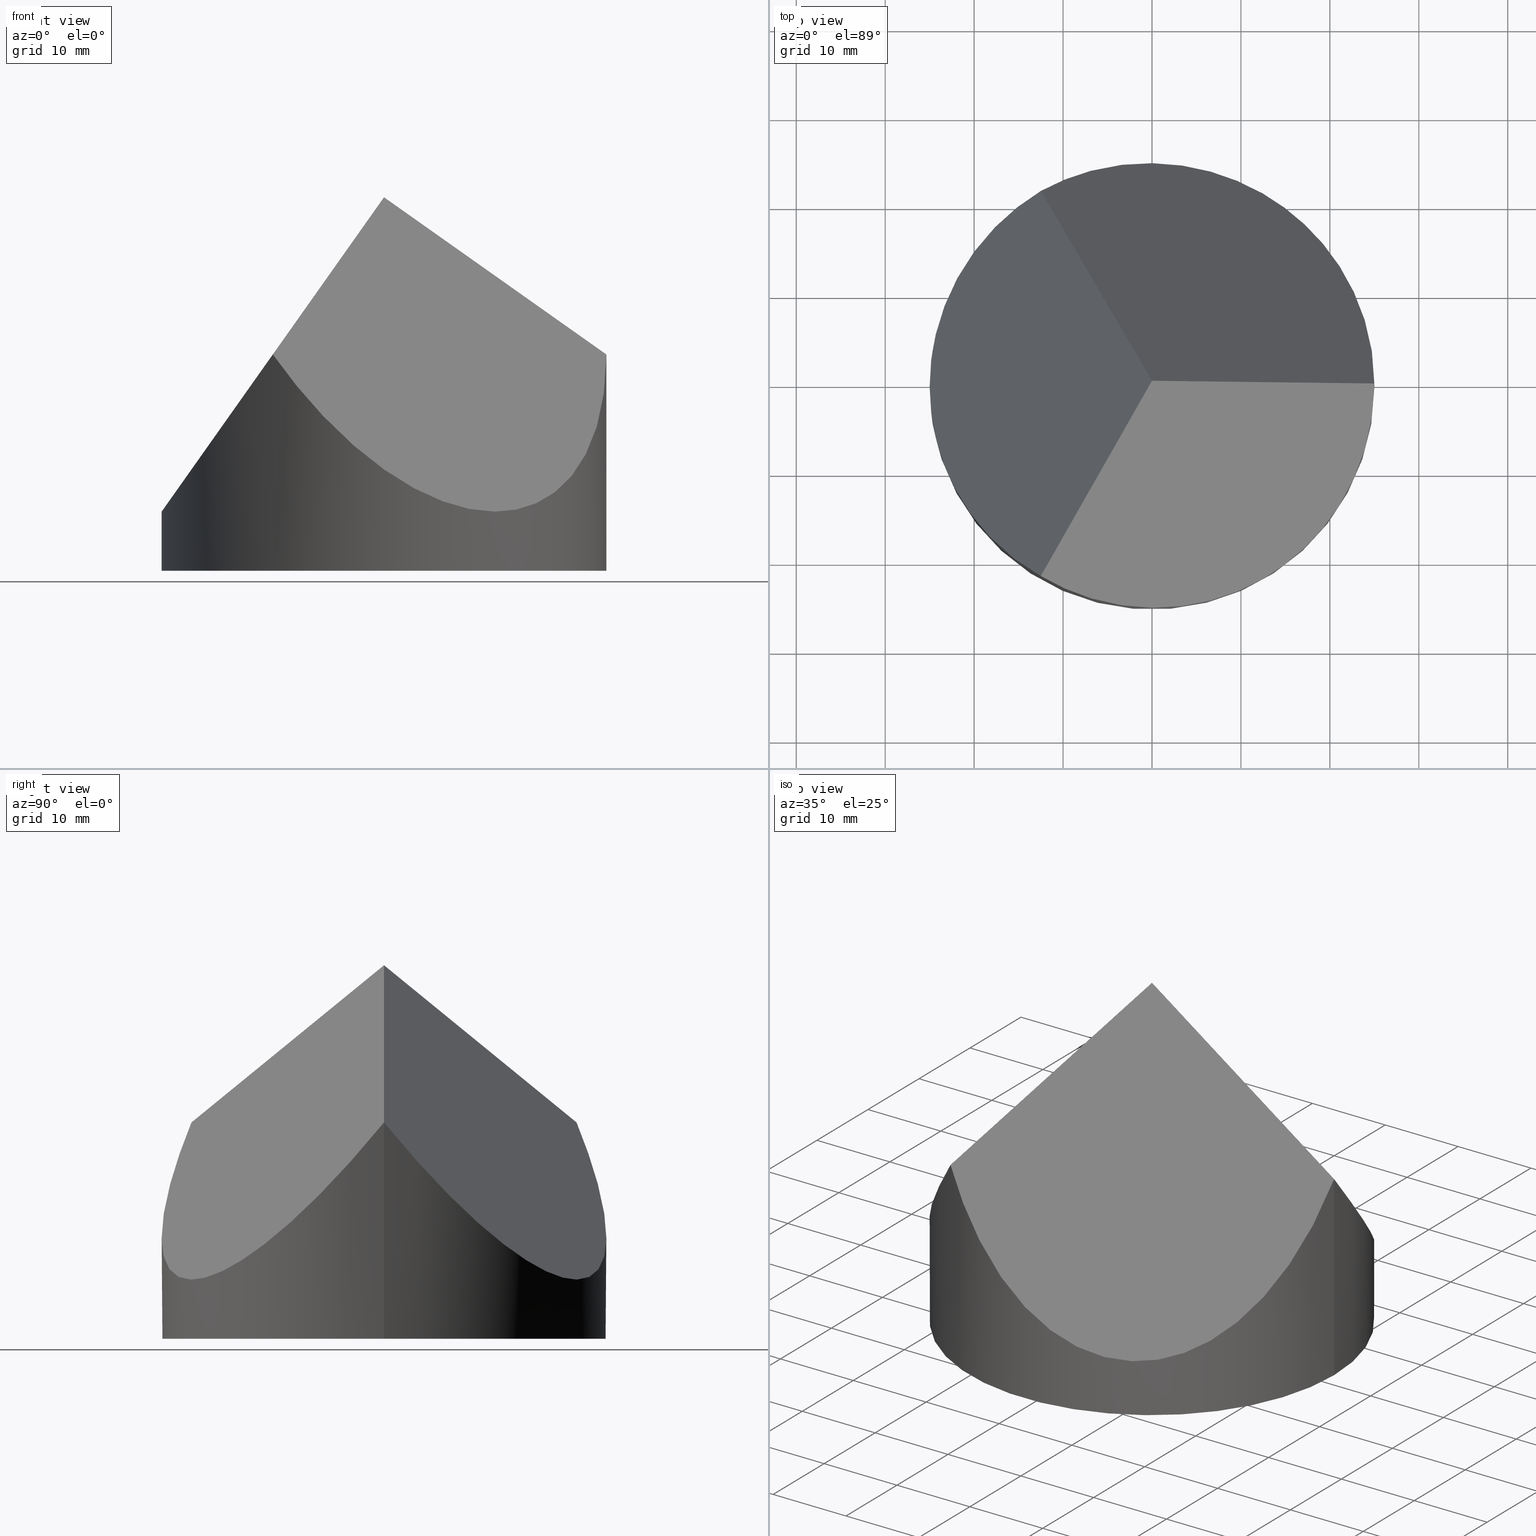
[diagram: canonical four-view strip — front | top / right | iso, engineering-drawing reading convention]
A machine part, canonical four-view strip (front | top / right | iso — engineering-drawing reading convention). The complete STEP part file that produces these views, byte-faithful:
ISO-10303-21;
HEADER;
FILE_DESCRIPTION (( 'STEP AP203' ),
    '1' );
FILE_NAME ('371506.STEP',
    '2019-07-25T01:43:18',
    ( '' ),
    ( '' ),
    'SwSTEP 2.0',
    'SolidWorks 2016',
    '' );
FILE_SCHEMA (( 'CONFIG_CONTROL_DESIGN' ));
ENDSEC;

DATA;
#1 = APPLICATION_CONTEXT ( 'configuration controlled 3d designs of mechanical parts and assemblies' ) ;
#2 = SECURITY_CLASSIFICATION_LEVEL ( 'unclassified' ) ;
#3 = PERSON_AND_ORGANIZATION_ROLE ( 'classification_officer' ) ;
#4 = CC_DESIGN_DATE_AND_TIME_ASSIGNMENT ( #160, #292, ( #72 ) ) ;
#5 = LOCAL_TIME ( 9, 43, 18.00000000000000000, #299 ) ;
#6 = CALENDAR_DATE ( 2019, 25, 7 ) ;
#7 = CC_DESIGN_PERSON_AND_ORGANIZATION_ASSIGNMENT ( #230, #73, ( #14 ) ) ;
#8 = VECTOR ( 'NONE', #190, 1000.000000000000100 ) ;
#9 = EDGE_LOOP ( 'NONE', ( #78, #199, #255 ) ) ;
#10 = CC_DESIGN_DATE_AND_TIME_ASSIGNMENT ( #46, #204, ( #307 ) ) ;
#11 = DATE_AND_TIME ( #60, #264 ) ;
#12 = ORIENTED_EDGE ( 'NONE', *, *, #229, .T. ) ;
#13 = DIRECTION ( 'NONE',  ( -1.000000000000000000, 0.0000000000000000000, 0.0000000000000000000 ) ) ;
#14 = PRODUCT_DEFINITION_FORMATION_WITH_SPECIFIED_SOURCE ( '�κ�', '', #286, .NOT_KNOWN. ) ;
#15 = EDGE_CURVE ( 'NONE', #221, #181, #31, .T. ) ;
#16 = PRODUCT_DEFINITION_SHAPE ( 'NONE', 'NONE',  #72 ) ;
#17 = CARTESIAN_POINT ( 'NONE',  ( -12.50000000000003000, -21.65063509461096900, 24.32600190598651200 ) ) ;
#18 = EDGE_CURVE ( 'NONE', #221, #30, #122, .T. ) ;
#19 = PERSON_AND_ORGANIZATION ( #62, #205 ) ;
#20 = DIRECTION ( 'NONE',  ( 0.0000000000000000000, -0.6325343505460011600, 0.7745323075116675700 ) ) ;
#21 = EDGE_LOOP ( 'NONE', ( #107, #40 ) ) ;
#22 = CARTESIAN_POINT ( 'NONE',  ( 0.0000000000000000000, 0.0000000000000000000, 0.0000000000000000000 ) ) ;
#23 = CC_DESIGN_PERSON_AND_ORGANIZATION_ASSIGNMENT ( #118, #3, ( #211 ) ) ;
#24 = DIRECTION ( 'NONE',  ( 0.0000000000000000000, 0.0000000000000000000, 1.000000000000000000 ) ) ;
#25 = APPROVAL_STATUS ( 'not_yet_approved' ) ;
#26 = APPROVAL_STATUS ( 'not_yet_approved' ) ;
#27 = APPROVAL ( #94, 'δָ��' ) ;
#28 = CIRCLE ( 'NONE', #187, 25.00000000000000000 ) ;
#29 = APPROVAL_ROLE ( '' ) ;
#30 = VERTEX_POINT ( 'NONE', #17 ) ;
#31 = LINE ( 'NONE', #183, #81 ) ;
#32 = AXIS2_PLACEMENT_3D ( 'NONE', #268, #240, #13 ) ;
#33 = LOCAL_TIME ( 9, 43, 18.00000000000000000, #134 ) ;
#34 = PRODUCT_RELATED_PRODUCT_CATEGORY ( 'detail', '', ( #286 ) ) ;
#35 = LOCAL_TIME ( 9, 43, 18.00000000000000000, #59 ) ;
#36 = FACE_OUTER_BOUND ( 'NONE', #162, .T. ) ;
#37 = DIRECTION ( 'NONE',  ( 1.000000000000000000, 0.0000000000000000000, -0.0000000000000000000 ) ) ;
#38 = CARTESIAN_POINT ( 'NONE',  ( -25.00000000000000700, -9.150635094610953100, 6.652003811973096400 ) ) ;
#39 = COORDINATED_UNIVERSAL_TIME_OFFSET ( 8, 0, .AHEAD. ) ;
#40 = ORIENTED_EDGE ( 'NONE', *, *, #79, .F. ) ;
#41 = DIRECTION ( 'NONE',  ( 0.0000000000000000000, 0.6325343505460014900, 0.7745323075116673500 ) ) ;
#42 = CC_DESIGN_APPROVAL ( #27, ( #211 ) ) ;
#43 = DIRECTION ( 'NONE',  ( 1.000000000000000000, 0.0000000000000000000, 0.0000000000000000000 ) ) ;
#44 = APPROVAL_PERSON_ORGANIZATION ( #109, #175, #275 ) ;
#45 = APPLICATION_PROTOCOL_DEFINITION ( 'international standard', 'config_control_design', 1994, #137 ) ;
#46 = DATE_AND_TIME ( #124, #5 ) ;
#47 = CARTESIAN_POINT ( 'NONE',  ( 0.0000000000000000000, -5.798745577028398700E-015, 42.00000000000000700 ) ) ;
#48 = PERSON_AND_ORGANIZATION_ROLE ( 'classification_officer' ) ;
#49 = APPLICATION_PROTOCOL_DEFINITION ( 'international standard', 'config_control_design', 1994, #138 ) ;
#50 = APPROVAL_ROLE ( '' ) ;
#51 = VECTOR ( 'NONE', #184, 1000.000000000000200 ) ;
#52 = ORIENTED_EDGE ( 'NONE', *, *, #173, .F. ) ;
#53 = CC_DESIGN_APPROVAL ( #175, ( #307 ) ) ;
#54 = DATE_AND_TIME ( #6, #237 ) ;
#55 = ADVANCED_FACE ( 'NONE', ( #149 ), #225, .T. ) ;
#56 =( GEOMETRIC_REPRESENTATION_CONTEXT ( 3 ) GLOBAL_UNCERTAINTY_ASSIGNED_CONTEXT ( ( #165 ) ) GLOBAL_UNIT_ASSIGNED_CONTEXT ( ( #244, #224, #90 ) ) REPRESENTATION_CONTEXT ( 'NONE', 'WORKASPACE' ) );
#57 = APPROVAL ( #25, 'δָ��' ) ;
#58 = VERTEX_POINT ( 'NONE', #132 ) ;
#59 = COORDINATED_UNIVERSAL_TIME_OFFSET ( 8, 0, .AHEAD. ) ;
#60 = CALENDAR_DATE ( 2019, 25, 7 ) ;
#61 = CARTESIAN_POINT ( 'NONE',  ( 0.0000000000000000000, 0.0000000000000000000, 0.0000000000000000000 ) ) ;
#62 = PERSON ( 'δָ��', 'δָ��', 'δָ��', ('δָ��'), ('δָ��'), ('δָ��') ) ;
#63 = AXIS2_PLACEMENT_3D ( 'NONE', #308, #136, #272 ) ;
#64 = CARTESIAN_POINT ( 'NONE',  ( -12.50000000000003000, 21.65063509461094800, 24.32600190598650900 ) ) ;
#65 = CARTESIAN_POINT ( 'NONE',  ( -25.00000000000000000, 0.0000000000000000000, 42.00000000000000000 ) ) ;
#66 = LOCAL_TIME ( 9, 43, 18.00000000000000000, #126 ) ;
#67 = PERSON_AND_ORGANIZATION ( #62, #205 ) ;
#68 = CC_DESIGN_PERSON_AND_ORGANIZATION_ASSIGNMENT ( #177, #48, ( #231 ) ) ;
#69 = CARTESIAN_POINT ( 'NONE',  ( -20.42468245269453300, 17.07531754730545600, 13.12113610081974900 ) ) ;
#70 = DATE_TIME_ROLE ( 'classification_date' ) ;
#71 = APPROVAL_ROLE ( '' ) ;
#72 = PRODUCT_DEFINITION ( 'δ֪', '', #14, #153 ) ;
#73 = PERSON_AND_ORGANIZATION_ROLE ( 'creator' ) ;
#74 = APPROVAL ( #298, 'δָ��' ) ;
#75 = CALENDAR_DATE ( 2019, 25, 7 ) ;
#76 = PERSON_AND_ORGANIZATION ( #62, #205 ) ;
#77 = DATE_AND_TIME ( #128, #207 ) ;
#78 = ORIENTED_EDGE ( 'NONE', *, *, #105, .T. ) ;
#79 = EDGE_CURVE ( 'NONE', #181, #115, #282, .T. ) ;
#80 = CC_DESIGN_DATE_AND_TIME_ASSIGNMENT ( #54, #253, ( #211 ) ) ;
#81 = VECTOR ( 'NONE', #161, 1000.000000000000000 ) ;
#82 = ORIENTED_EDGE ( 'NONE', *, *, #152, .F. ) ;
#83 = CARTESIAN_POINT ( 'NONE',  ( -12.50000000000003000, -21.65063509461096900, 24.32600190598651200 ) ) ;
#84 = CC_DESIGN_APPROVAL ( #95, ( #72 ) ) ;
#85 = DIRECTION ( 'NONE',  ( -0.5774302165486712200, 0.0000000000000000000, -0.8164400437365591000 ) ) ;
#86 = CARTESIAN_POINT ( 'NONE',  ( 6.249999999999992000, -32.47595264191646400, -2.184995235033657700 ) ) ;
#87 = FACE_OUTER_BOUND ( 'NONE', #9, .T. ) ;
#88 = ORIENTED_EDGE ( 'NONE', *, *, #152, .T. ) ;
#89 = CC_DESIGN_PERSON_AND_ORGANIZATION_ASSIGNMENT ( #76, #201, ( #133 ) ) ;
#90 =( NAMED_UNIT ( * ) SI_UNIT ( $, .STERADIAN. ) SOLID_ANGLE_UNIT ( ) );
#91 = PERSON_AND_ORGANIZATION_ROLE ( 'design_owner' ) ;
#92 = DIRECTION ( 'NONE',  ( 0.0000000000000000000, 0.0000000000000000000, 1.000000000000000000 ) ) ;
#93 = APPROVAL_STATUS ( 'not_yet_approved' ) ;
#94 = APPROVAL_STATUS ( 'not_yet_approved' ) ;
#95 = APPROVAL ( #26, 'δָ��' ) ;
#96 = APPROVAL_STATUS ( 'not_yet_approved' ) ;
#97 = ADVANCED_FACE ( 'NONE', ( #167 ), #156, .F. ) ;
#98 = ORIENTED_EDGE ( 'NONE', *, *, #229, .F. ) ;
#99 = DESIGN_CONTEXT ( 'detailed design', #171, 'design' ) ;
#100 = EDGE_CURVE ( 'NONE', #221, #247, #232, .T. ) ;
#101 = CC_DESIGN_DATE_AND_TIME_ASSIGNMENT ( #168, #70, ( #231 ) ) ;
#102 = COORDINATED_UNIVERSAL_TIME_OFFSET ( 8, 0, .AHEAD. ) ;
#103 = LINE ( 'NONE', #65, #157 ) ;
#104 = AXIS2_PLACEMENT_3D ( 'NONE', #61, #111, #236 ) ;
#105 = EDGE_CURVE ( 'NONE', #221, #278, #186, .T. ) ;
#106 = DATE_AND_TIME ( #114, #179 ) ;
#107 = ORIENTED_EDGE ( 'NONE', *, *, #209, .F. ) ;
#108 = CC_DESIGN_APPROVAL ( #74, ( #133 ) ) ;
#109 = PERSON_AND_ORGANIZATION ( #62, #205 ) ;
#110 = CARTESIAN_POINT ( 'NONE',  ( 35.80067308283097600, -3.469446951953614200E-015, 16.69035888678597600 ) ) ;
#111 = DIRECTION ( 'NONE',  ( 0.0000000000000000000, 0.0000000000000000000, 1.000000000000000000 ) ) ;
#112 = CARTESIAN_POINT ( 'NONE',  ( -25.00000000000000400, 9.150635094610953100, 6.652003811973095500 ) ) ;
#113 = PLANE ( 'NONE',  #121 ) ;
#114 = CALENDAR_DATE ( 2019, 25, 7 ) ;
#115 = VERTEX_POINT ( 'NONE', #158 ) ;
#116 = AXIS2_PLACEMENT_3D ( 'NONE', #22, #24, #117 ) ;
#117 = DIRECTION ( 'NONE',  ( 1.000000000000000000, 0.0000000000000000000, 0.0000000000000000000 ) ) ;
#118 = PERSON_AND_ORGANIZATION ( #62, #205 ) ;
#119 = CARTESIAN_POINT ( 'NONE',  ( 25.00000000000001400, -4.874894994984150700E-015, 24.32600190598661900 ) ) ;
#120 = MECHANICAL_CONTEXT ( 'NONE', #138, 'mechanical' ) ;
#121 = AXIS2_PLACEMENT_3D ( 'NONE', #159, #212, #37 ) ;
#122 =( BOUNDED_CURVE ( )  B_SPLINE_CURVE ( 3, ( #130, #241, #86, #213 ),
 .UNSPECIFIED., .F., .T. ) 
 B_SPLINE_CURVE_WITH_KNOTS ( ( 4, 4 ),
 ( 5.235987755982986200, 7.330382858376182800 ),
 .UNSPECIFIED. ) 
 CURVE ( )  GEOMETRIC_REPRESENTATION_ITEM ( )  RATIONAL_B_SPLINE_CURVE ( ( 1.000000000000000000, 0.6666666666666663000, 0.6666666666666663000, 1.000000000000000000 ) ) 
 REPRESENTATION_ITEM ( '' )  );
#123 = APPROVAL ( #96, 'δָ��' ) ;
#124 = CALENDAR_DATE ( 2019, 25, 7 ) ;
#125 = ORIENTED_EDGE ( 'NONE', *, *, #261, .T. ) ;
#126 = COORDINATED_UNIVERSAL_TIME_OFFSET ( 8, 0, .AHEAD. ) ;
#127 = MANIFOLD_SOLID_BREP ( '�г�-����3', #271 ) ;
#128 = CALENDAR_DATE ( 2019, 25, 7 ) ;
#129 = CC_DESIGN_PERSON_AND_ORGANIZATION_ASSIGNMENT ( #311, #228, ( #133 ) ) ;
#130 = CARTESIAN_POINT ( 'NONE',  ( 25.00000000000001400, -4.874894994984150700E-015, 24.32600190598661900 ) ) ;
#131 = FACE_OUTER_BOUND ( 'NONE', #21, .T. ) ;
#132 = CARTESIAN_POINT ( 'NONE',  ( -25.00000000000000000, 0.0000000000000000000, 6.652003811973103500 ) ) ;
#133 = PRODUCT_DEFINITION_FORMATION_WITH_SPECIFIED_SOURCE ( '�κ�', '', #216, .NOT_KNOWN. ) ;
#134 = COORDINATED_UNIVERSAL_TIME_OFFSET ( 8, 0, .AHEAD. ) ;
#135 = EDGE_LOOP ( 'NONE', ( #176, #283, #206, #155, #144 ) ) ;
#136 = DIRECTION ( 'NONE',  ( -0.0000000000000000000, -0.0000000000000000000, -1.000000000000000000 ) ) ;
#137 = APPLICATION_CONTEXT ( 'configuration controlled 3d designs of mechanical parts and assemblies' ) ;
#138 = APPLICATION_CONTEXT ( 'configuration controlled 3d designs of mechanical parts and assemblies' ) ;
#139 = APPROVAL_DATE_TIME ( #281, #27 ) ;
#140 = DIRECTION ( 'NONE',  ( 0.0000000000000000000, 0.0000000000000000000, 1.000000000000000000 ) ) ;
#141 = LINE ( 'NONE', #223, #219 ) ;
#142 = PERSON_AND_ORGANIZATION_ROLE ( 'design_supplier' ) ;
#143 = PERSON_AND_ORGANIZATION ( #62, #205 ) ;
#144 = ORIENTED_EDGE ( 'NONE', *, *, #173, .T. ) ;
#145 = ORIENTED_EDGE ( 'NONE', *, *, #18, .T. ) ;
#146 = CC_DESIGN_PERSON_AND_ORGANIZATION_ASSIGNMENT ( #154, #142, ( #14 ) ) ;
#147 = ADVANCED_FACE ( 'NONE', ( #131 ), #113, .F. ) ;
#148 = COORDINATED_UNIVERSAL_TIME_OFFSET ( 8, 0, .AHEAD. ) ;
#149 = FACE_OUTER_BOUND ( 'NONE', #135, .T. ) ;
#150 = ORIENTED_EDGE ( 'NONE', *, *, #209, .T. ) ;
#151 = CC_DESIGN_PERSON_AND_ORGANIZATION_ASSIGNMENT ( #143, #227, ( #72 ) ) ;
#152 = EDGE_CURVE ( 'NONE', #30, #58, #294, .T. ) ;
#153 = DESIGN_CONTEXT ( 'detailed design', #1, 'design' ) ;
#154 = PERSON_AND_ORGANIZATION ( #62, #205 ) ;
#155 = ORIENTED_EDGE ( 'NONE', *, *, #261, .F. ) ;
#156 = PLANE ( 'NONE',  #172 ) ;
#157 = VECTOR ( 'NONE', #164, 1000.000000000000000 ) ;
#158 = CARTESIAN_POINT ( 'NONE',  ( -25.00000000000000000, 0.0000000000000000000, 0.0000000000000000000 ) ) ;
#159 = CARTESIAN_POINT ( 'NONE',  ( 0.0000000000000000000, 0.0000000000000000000, 0.0000000000000000000 ) ) ;
#160 = DATE_AND_TIME ( #210, #293 ) ;
#161 = DIRECTION ( 'NONE',  ( -0.0000000000000000000, -0.0000000000000000000, -1.000000000000000000 ) ) ;
#162 = EDGE_LOOP ( 'NONE', ( #257, #235, #12 ) ) ;
#163 = CARTESIAN_POINT ( 'NONE',  ( -11.40424666751465600, -19.75273465018339500, 25.87530929077494000 ) ) ;
#164 = DIRECTION ( 'NONE',  ( -0.0000000000000000000, -0.0000000000000000000, -1.000000000000000000 ) ) ;
#165 = UNCERTAINTY_MEASURE_WITH_UNIT (LENGTH_MEASURE( 1.000000000000000100E-005 ), #244, 'distance_accuracy_value', 'NONE');
#166 = APPROVAL_DATE_TIME ( #77, #175 ) ;
#167 = FACE_OUTER_BOUND ( 'NONE', #297, .T. ) ;
#168 = DATE_AND_TIME ( #238, #248 ) ;
#169 = APPLICATION_PROTOCOL_DEFINITION ( 'international standard', 'config_control_design', 1994, #1 ) ;
#170 = CARTESIAN_POINT ( 'NONE',  ( 0.0000000000000000000, 0.0000000000000000000, 0.0000000000000000000 ) ) ;
#171 = APPLICATION_CONTEXT ( 'configuration controlled 3d designs of mechanical parts and assemblies' ) ;
#172 = AXIS2_PLACEMENT_3D ( 'NONE', #215, #217, #85 ) ;
#173 = EDGE_CURVE ( 'NONE', #58, #247, #192, .T. ) ;
#174 = APPROVAL_DATE_TIME ( #106, #95 ) ;
#175 = APPROVAL ( #93, 'δָ��' ) ;
#176 = ORIENTED_EDGE ( 'NONE', *, *, #100, .F. ) ;
#177 = PERSON_AND_ORGANIZATION ( #62, #205 ) ;
#178 = ADVANCED_FACE ( 'NONE', ( #198 ), #284, .T. ) ;
#179 = LOCAL_TIME ( 9, 43, 18.00000000000000000, #254 ) ;
#180 = APPROVAL_PERSON_ORGANIZATION ( #258, #27, #50 ) ;
#181 = VERTEX_POINT ( 'NONE', #312 ) ;
#182 = COORDINATED_UNIVERSAL_TIME_OFFSET ( 8, 0, .AHEAD. ) ;
#183 = CARTESIAN_POINT ( 'NONE',  ( 25.00000000000000000, 3.061616997868382300E-015, 42.00000000000000000 ) ) ;
#184 = DIRECTION ( 'NONE',  ( -0.8165531063768112200, -1.062547636232122500E-016, 0.5772703218305786900 ) ) ;
#185 = CARTESIAN_POINT ( 'NONE',  ( -20.42468245269452600, -17.07531754730547000, 13.12113610081976100 ) ) ;
#186 = LINE ( 'NONE', #110, #51 ) ;
#187 = AXIS2_PLACEMENT_3D ( 'NONE', #194, #92, #43 ) ;
#188 = CARTESIAN_POINT ( 'NONE',  ( -25.00000000000000000, 0.0000000000000000000, 6.652003811973103500 ) ) ;
#189 = CC_DESIGN_APPROVAL ( #57, ( #14 ) ) ;
#190 = DIRECTION ( 'NONE',  ( 0.4082765531884056700, 0.7071557336614137100, 0.5772703218305809100 ) ) ;
#191 = CC_DESIGN_APPROVAL ( #123, ( #231 ) ) ;
#192 =( BOUNDED_CURVE ( )  B_SPLINE_CURVE ( 3, ( #239, #112, #69, #64 ),
 .UNSPECIFIED., .F., .T. ) 
 B_SPLINE_CURVE_WITH_KNOTS ( ( 4, 4 ),
 ( 0.0000000000000000000, 1.047197551196596300 ),
 .UNSPECIFIED. ) 
 CURVE ( )  GEOMETRIC_REPRESENTATION_ITEM ( )  RATIONAL_B_SPLINE_CURVE ( ( 1.000000000000000000, 0.9106836025229593200, 0.9106836025229593200, 1.000000000000000000 ) ) 
 REPRESENTATION_ITEM ( '' )  );
#193 = APPROVAL_DATE_TIME ( #233, #123 ) ;
#194 = CARTESIAN_POINT ( 'NONE',  ( 0.0000000000000000000, 0.0000000000000000000, 0.0000000000000000000 ) ) ;
#195 = APPROVAL_PERSON_ORGANIZATION ( #265, #74, #29 ) ;
#196 = PLANE ( 'NONE',  #220 ) ;
#197 = APPROVAL_ROLE ( '' ) ;
#198 = FACE_OUTER_BOUND ( 'NONE', #295, .T. ) ;
#199 = ORIENTED_EDGE ( 'NONE', *, *, #301, .F. ) ;
#200 = APPLICATION_PROTOCOL_DEFINITION ( 'international standard', 'config_control_design', 1994, #171 ) ;
#201 = PERSON_AND_ORGANIZATION_ROLE ( 'creator' ) ;
#202 = PERSON_AND_ORGANIZATION_ROLE ( 'creator' ) ;
#203 = ADVANCED_FACE ( 'NONE', ( #87 ), #309, .F. ) ;
#204 = DATE_TIME_ROLE ( 'creation_date' ) ;
#205 = ORGANIZATION ( 'δָ��', 'δָ��', '' ) ;
#206 = ORIENTED_EDGE ( 'NONE', *, *, #79, .T. ) ;
#207 = LOCAL_TIME ( 9, 43, 18.00000000000000000, #148 ) ;
#208 = CC_DESIGN_PERSON_AND_ORGANIZATION_ASSIGNMENT ( #259, #91, ( #286 ) ) ;
#209 = EDGE_CURVE ( 'NONE', #115, #181, #28, .T. ) ;
#210 = CALENDAR_DATE ( 2019, 25, 7 ) ;
#211 = SECURITY_CLASSIFICATION ( '', '', #226 ) ;
#212 = DIRECTION ( 'NONE',  ( 0.0000000000000000000, 0.0000000000000000000, 1.000000000000000000 ) ) ;
#213 = CARTESIAN_POINT ( 'NONE',  ( -12.50000000000003000, -21.65063509461096900, 24.32600190598651200 ) ) ;
#214 = CALENDAR_DATE ( 2019, 25, 7 ) ;
#215 = CARTESIAN_POINT ( 'NONE',  ( 0.0000000000000000000, -39.50000000000000000, 42.00000000000000000 ) ) ;
#216 = PRODUCT ( '371506', '371506', '', ( #120 ) ) ;
#217 = DIRECTION ( 'NONE',  ( 0.8164400437365592100, 0.0000000000000000000, -0.5774302165486713300 ) ) ;
#218 = CARTESIAN_POINT ( 'NONE',  ( -12.50000000000003000, 21.65063509461094800, 24.32600190598650900 ) ) ;
#219 = VECTOR ( 'NONE', #273, 1000.000000000000100 ) ;
#220 = AXIS2_PLACEMENT_3D ( 'NONE', #243, #290, #20 ) ;
#221 = VERTEX_POINT ( 'NONE', #119 ) ;
#222 = ORIENTED_EDGE ( 'NONE', *, *, #301, .T. ) ;
#223 = CARTESIAN_POINT ( 'NONE',  ( 11.40424666751465900, -19.75273465018337800, 58.12469070922506400 ) ) ;
#224 =( NAMED_UNIT ( * ) PLANE_ANGLE_UNIT ( ) SI_UNIT ( $, .RADIAN. ) );
#225 = CYLINDRICAL_SURFACE ( 'NONE', #32, 25.00000000000000000 ) ;
#226 = SECURITY_CLASSIFICATION_LEVEL ( 'unclassified' ) ;
#227 = PERSON_AND_ORGANIZATION_ROLE ( 'creator' ) ;
#228 = PERSON_AND_ORGANIZATION_ROLE ( 'design_supplier' ) ;
#229 = EDGE_CURVE ( 'NONE', #247, #278, #141, .T. ) ;
#230 = PERSON_AND_ORGANIZATION ( #62, #205 ) ;
#231 = SECURITY_CLASSIFICATION ( '', '', #2 ) ;
#232 =( BOUNDED_CURVE ( )  B_SPLINE_CURVE ( 3, ( #266, #285, #305, #287 ),
 .UNSPECIFIED., .F., .F. ) 
 B_SPLINE_CURVE_WITH_KNOTS ( ( 4, 4 ),
 ( 5.235987755982985300, 7.330382858376182800 ),
 .UNSPECIFIED. ) 
 CURVE ( )  GEOMETRIC_REPRESENTATION_ITEM ( )  RATIONAL_B_SPLINE_CURVE ( ( 1.000000000000000000, 0.6666666666666660700, 0.6666666666666660700, 1.000000000000000000 ) ) 
 REPRESENTATION_ITEM ( '' )  );
#233 = DATE_AND_TIME ( #274, #66 ) ;
#234 = PERSON_AND_ORGANIZATION ( #62, #205 ) ;
#235 = ORIENTED_EDGE ( 'NONE', *, *, #100, .T. ) ;
#236 = DIRECTION ( 'NONE',  ( 1.000000000000000000, 0.0000000000000000000, 0.0000000000000000000 ) ) ;
#237 = LOCAL_TIME ( 9, 43, 18.00000000000000000, #102 ) ;
#238 = CALENDAR_DATE ( 2019, 25, 7 ) ;
#239 = CARTESIAN_POINT ( 'NONE',  ( -25.00000000000000000, 0.0000000000000000000, 6.652003811973103500 ) ) ;
#240 = DIRECTION ( 'NONE',  ( -0.0000000000000000000, -0.0000000000000000000, -1.000000000000000000 ) ) ;
#241 = CARTESIAN_POINT ( 'NONE',  ( 25.00000000000001400, -21.65063509461098000, -2.184995235033602200 ) ) ;
#242 = ADVANCED_BREP_SHAPE_REPRESENTATION ( '371506', ( #127, #276 ), #56 ) ;
#243 = CARTESIAN_POINT ( 'NONE',  ( 53.69357503463527300, -30.99999999999985400, 42.00000000000000000 ) ) ;
#244 =( LENGTH_UNIT ( ) NAMED_UNIT ( * ) SI_UNIT ( .MILLI., .METRE. ) );
#245 = CC_DESIGN_SECURITY_CLASSIFICATION ( #231, ( #133 ) ) ;
#246 = DIRECTION ( 'NONE',  ( 1.000000000000000000, 0.0000000000000000000, 0.0000000000000000000 ) ) ;
#247 = VERTEX_POINT ( 'NONE', #218 ) ;
#248 = LOCAL_TIME ( 9, 43, 18.00000000000000000, #304 ) ;
#249 = MECHANICAL_CONTEXT ( 'NONE', #137, 'mechanical' ) ;
#250 = DIRECTION ( 'NONE',  ( -0.4082200218682779900, 0.7070578185427393000, -0.5774302165486714400 ) ) ;
#251 = APPROVAL_ROLE ( '' ) ;
#252 = PERSON_AND_ORGANIZATION_ROLE ( 'design_owner' ) ;
#253 = DATE_TIME_ROLE ( 'classification_date' ) ;
#254 = COORDINATED_UNIVERSAL_TIME_OFFSET ( 8, 0, .AHEAD. ) ;
#255 = ORIENTED_EDGE ( 'NONE', *, *, #18, .F. ) ;
#256 = PERSON_AND_ORGANIZATION ( #62, #205 ) ;
#257 = ORIENTED_EDGE ( 'NONE', *, *, #105, .F. ) ;
#258 = PERSON_AND_ORGANIZATION ( #62, #205 ) ;
#259 = PERSON_AND_ORGANIZATION ( #62, #205 ) ;
#260 = AXIS2_PLACEMENT_3D ( 'NONE', #269, #250, #41 ) ;
#261 = EDGE_CURVE ( 'NONE', #58, #115, #103, .T. ) ;
#262 = PRODUCT_DEFINITION_SHAPE ( 'NONE', 'NONE',  #307 ) ;
#263 = CC_DESIGN_PERSON_AND_ORGANIZATION_ASSIGNMENT ( #67, #202, ( #307 ) ) ;
#264 = LOCAL_TIME ( 9, 43, 18.00000000000000000, #182 ) ;
#265 = PERSON_AND_ORGANIZATION ( #62, #205 ) ;
#266 = CARTESIAN_POINT ( 'NONE',  ( 25.00000000000001400, -4.874894994984150700E-015, 24.32600190598661900 ) ) ;
#267 = SHAPE_DEFINITION_REPRESENTATION ( #262, #242 ) ;
#268 = CARTESIAN_POINT ( 'NONE',  ( 0.0000000000000000000, 0.0000000000000000000, 42.00000000000000000 ) ) ;
#269 = CARTESIAN_POINT ( 'NONE',  ( 46.33235910246752800, 26.74999999999989700, 42.00000000000000000 ) ) ;
#270 = DATE_AND_TIME ( #75, #33 ) ;
#271 = CLOSED_SHELL ( 'NONE', ( #55, #178, #97, #147, #280, #203 ) ) ;
#272 = DIRECTION ( 'NONE',  ( -1.000000000000000000, 0.0000000000000000000, 0.0000000000000000000 ) ) ;
#273 = DIRECTION ( 'NONE',  ( 0.4082765531884057800, -0.7071557336614134900, 0.5772703218305811300 ) ) ;
#274 = CALENDAR_DATE ( 2019, 25, 7 ) ;
#275 = APPROVAL_ROLE ( '' ) ;
#276 = AXIS2_PLACEMENT_3D ( 'NONE', #170, #140, #246 ) ;
#277 = APPROVAL_PERSON_ORGANIZATION ( #19, #57, #71 ) ;
#278 = VERTEX_POINT ( 'NONE', #47 ) ;
#279 = PRODUCT_RELATED_PRODUCT_CATEGORY ( 'detail', '', ( #216 ) ) ;
#280 = ADVANCED_FACE ( 'NONE', ( #36 ), #196, .T. ) ;
#281 = DATE_AND_TIME ( #214, #35 ) ;
#282 = CIRCLE ( 'NONE', #104, 25.00000000000000000 ) ;
#283 = ORIENTED_EDGE ( 'NONE', *, *, #15, .T. ) ;
#284 = CYLINDRICAL_SURFACE ( 'NONE', #63, 25.00000000000000000 ) ;
#285 = CARTESIAN_POINT ( 'NONE',  ( 25.00000000000001800, 21.65063509461097600, -2.184995235033643900 ) ) ;
#286 = PRODUCT ( '371506', '371506', '', ( #249 ) ) ;
#287 = CARTESIAN_POINT ( 'NONE',  ( -12.50000000000003000, 21.65063509461094800, 24.32600190598650900 ) ) ;
#288 = APPROVAL_DATE_TIME ( #270, #57 ) ;
#289 = APPROVAL_PERSON_ORGANIZATION ( #256, #123, #251 ) ;
#290 = DIRECTION ( 'NONE',  ( 0.4082200218682778300, 0.7070578185427396400, 0.5774302165486711000 ) ) ;
#291 = PERSON_AND_ORGANIZATION ( #62, #205 ) ;
#292 = DATE_TIME_ROLE ( 'creation_date' ) ;
#293 = LOCAL_TIME ( 9, 43, 18.00000000000000000, #39 ) ;
#294 =( BOUNDED_CURVE ( )  B_SPLINE_CURVE ( 3, ( #83, #185, #38, #188 ),
 .UNSPECIFIED., .F., .F. ) 
 B_SPLINE_CURVE_WITH_KNOTS ( ( 4, 4 ),
 ( 5.235987755982989700, 6.283185307179586200 ),
 .UNSPECIFIED. ) 
 CURVE ( )  GEOMETRIC_REPRESENTATION_ITEM ( )  RATIONAL_B_SPLINE_CURVE ( ( 1.000000000000000000, 0.9106836025229592100, 0.9106836025229592100, 1.000000000000000000 ) ) 
 REPRESENTATION_ITEM ( '' )  );
#295 = EDGE_LOOP ( 'NONE', ( #303, #145, #88, #125, #150 ) ) ;
#296 = CC_DESIGN_PERSON_AND_ORGANIZATION_ASSIGNMENT ( #234, #252, ( #216 ) ) ;
#297 = EDGE_LOOP ( 'NONE', ( #82, #222, #98, #52 ) ) ;
#298 = APPROVAL_STATUS ( 'not_yet_approved' ) ;
#299 = COORDINATED_UNIVERSAL_TIME_OFFSET ( 8, 0, .AHEAD. ) ;
#300 = LINE ( 'NONE', #163, #8 ) ;
#301 = EDGE_CURVE ( 'NONE', #30, #278, #300, .T. ) ;
#302 = CC_DESIGN_SECURITY_CLASSIFICATION ( #211, ( #14 ) ) ;
#303 = ORIENTED_EDGE ( 'NONE', *, *, #15, .F. ) ;
#304 = COORDINATED_UNIVERSAL_TIME_OFFSET ( 8, 0, .AHEAD. ) ;
#305 = CARTESIAN_POINT ( 'NONE',  ( 6.249999999999983100, 32.47595264191647900, -2.184995235033713200 ) ) ;
#306 = APPROVAL_PERSON_ORGANIZATION ( #291, #95, #197 ) ;
#307 = PRODUCT_DEFINITION ( 'δ֪', '', #133, #99 ) ;
#308 = CARTESIAN_POINT ( 'NONE',  ( 0.0000000000000000000, 0.0000000000000000000, 42.00000000000000000 ) ) ;
#309 = PLANE ( 'NONE',  #260 ) ;
#310 = APPROVAL_DATE_TIME ( #11, #74 ) ;
#311 = PERSON_AND_ORGANIZATION ( #62, #205 ) ;
#312 = CARTESIAN_POINT ( 'NONE',  ( 25.00000000000000000, 3.061616997868382300E-015, 0.0000000000000000000 ) ) ;
ENDSEC;
END-ISO-10303-21;
